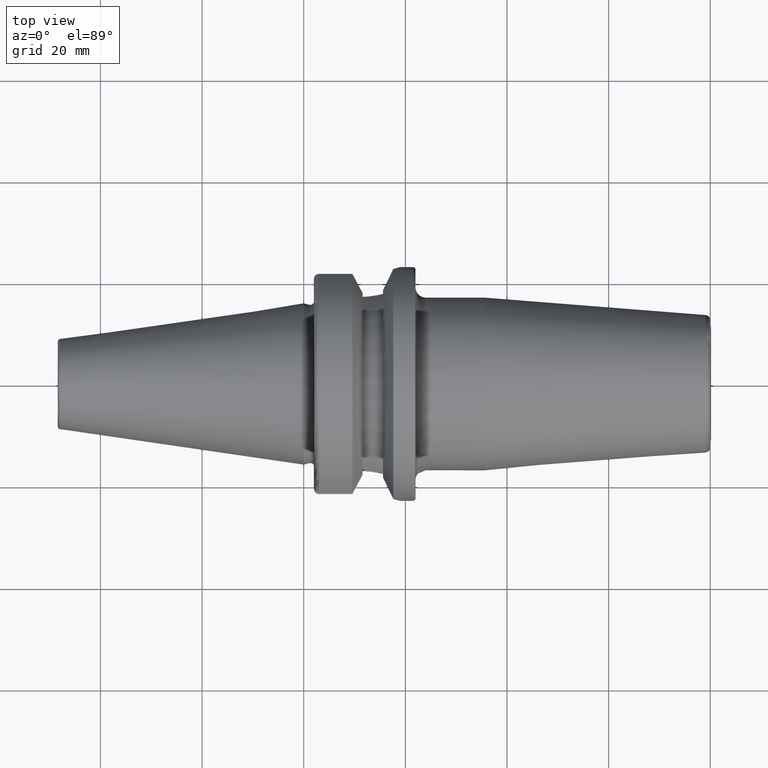
[diagram: clean part render]
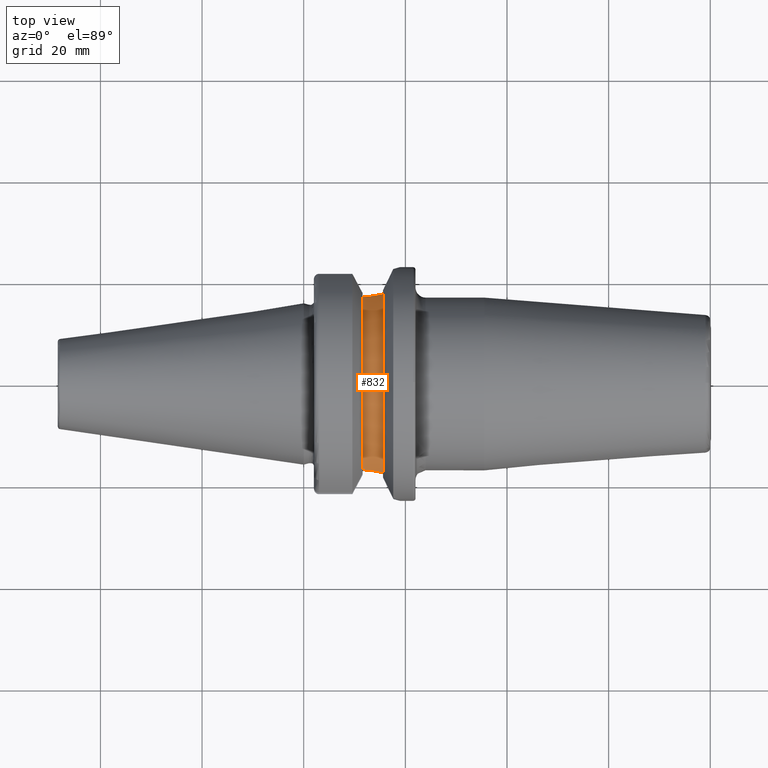
[diagram: same view with one face highlighted and labeled with its STEP entity id]
A machine part, top view. The second image highlights one B-rep face of the part: STEP entity #832.
In plain terms, the highlighted cylindrical surface (partial cylindrical patch) has radius 18.8 mm, axis along (1, 0, 0).
Its self-contained STEP definition (entity closure, byte-faithful):
#25=B_SPLINE_CURVE_WITH_KNOTS('',3,(#1348,#1349,#1350,#1351,#1352,#1353),
 .UNSPECIFIED.,.F.,.F.,(4,2,4),(0.0643720845929635,0.30781484885496,0.479269495730354),
 .UNSPECIFIED.);
#35=B_SPLINE_CURVE_WITH_KNOTS('',3,(#1499,#1500,#1501,#1502,#1503,#1504),
 .UNSPECIFIED.,.F.,.F.,(4,2,4),(4.44241443140766,4.61386907828305,4.85731184254505),
 .UNSPECIFIED.);
#83=CYLINDRICAL_SURFACE('',#956,18.8);
#127=FACE_OUTER_BOUND('',#182,.T.);
#182=EDGE_LOOP('',(#747,#748,#749,#750));
#323=CIRCLE('',#955,18.8);
#324=CIRCLE('',#957,18.8);
#361=VERTEX_POINT('',#1345);
#362=VERTEX_POINT('',#1347);
#391=VERTEX_POINT('',#1496);
#392=VERTEX_POINT('',#1498);
#451=EDGE_CURVE('',#362,#361,#25,.T.);
#494=EDGE_CURVE('',#392,#391,#35,.T.);
#523=EDGE_CURVE('',#391,#362,#323,.T.);
#524=EDGE_CURVE('',#392,#361,#324,.T.);
#747=ORIENTED_EDGE('',*,*,#451,.T.);
#748=ORIENTED_EDGE('',*,*,#524,.F.);
#749=ORIENTED_EDGE('',*,*,#494,.T.);
#750=ORIENTED_EDGE('',*,*,#523,.T.);
#832=ADVANCED_FACE('',(#127),#83,.T.);
#955=AXIS2_PLACEMENT_3D('',#1577,#1195,#1196);
#956=AXIS2_PLACEMENT_3D('',#1578,#1197,#1198);
#957=AXIS2_PLACEMENT_3D('',#1579,#1199,#1200);
#1195=DIRECTION('center_axis',(1.,1.62798202122572E-21,0.));
#1196=DIRECTION('ref_axis',(0.,0.,-1.));
#1197=DIRECTION('center_axis',(1.,1.62798202122572E-21,0.));
#1198=DIRECTION('ref_axis',(0.,1.,0.));
#1199=DIRECTION('center_axis',(1.,1.62798202122572E-21,0.));
#1200=DIRECTION('ref_axis',(0.,0.,-1.));
#1345=CARTESIAN_POINT('',(15.6,-17.6141988179991,6.57114906237866));
#1347=CARTESIAN_POINT('',(11.6,-17.0017646142981,8.02371485036701));
#1348=CARTESIAN_POINT('Ctrl Pts',(11.6,-17.0017646142981,8.02371485036701));
#1349=CARTESIAN_POINT('Ctrl Pts',(12.4254758830597,-17.0333236516193,7.95684316636589));
#1350=CARTESIAN_POINT('Ctrl Pts',(13.2665825144021,-17.1292648239135,7.75593228074541));
#1351=CARTESIAN_POINT('Ctrl Pts',(14.5999261767414,-17.3685240417641,7.19978909477497));
#1352=CARTESIAN_POINT('Ctrl Pts',(15.1233906500761,-17.4883779674429,6.90841632813503));
#1353=CARTESIAN_POINT('Ctrl Pts',(15.6,-17.6141988179991,6.57114906237866));
#1496=CARTESIAN_POINT('',(11.6,17.0017646142981,8.02371485036701));
#1498=CARTESIAN_POINT('',(15.6,17.6141988179991,6.57114906237866));
#1499=CARTESIAN_POINT('Ctrl Pts',(15.6,17.6141988179991,6.57114906237866));
#1500=CARTESIAN_POINT('Ctrl Pts',(15.1233906500761,17.4883779674429,6.90841632813503));
#1501=CARTESIAN_POINT('Ctrl Pts',(14.5999261767414,17.3685240417641,7.19978909477497));
#1502=CARTESIAN_POINT('Ctrl Pts',(13.2665825144021,17.1292648239135,7.75593228074541));
#1503=CARTESIAN_POINT('Ctrl Pts',(12.4254758830597,17.0333236516193,7.95684316636589));
#1504=CARTESIAN_POINT('Ctrl Pts',(11.6,17.0017646142981,8.02371485036701));
#1577=CARTESIAN_POINT('Origin',(11.6,2.08175445421929E-15,0.));
#1578=CARTESIAN_POINT('Origin',(13.6,2.08175771018334E-15,0.));
#1579=CARTESIAN_POINT('Origin',(15.6,2.08176096614738E-15,0.));